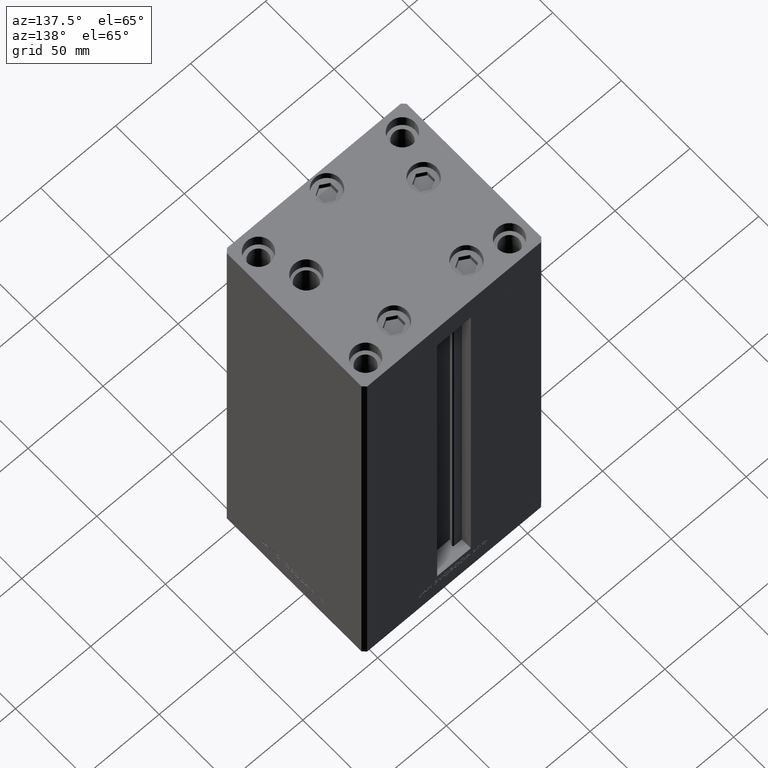
[diagram: clean part render]
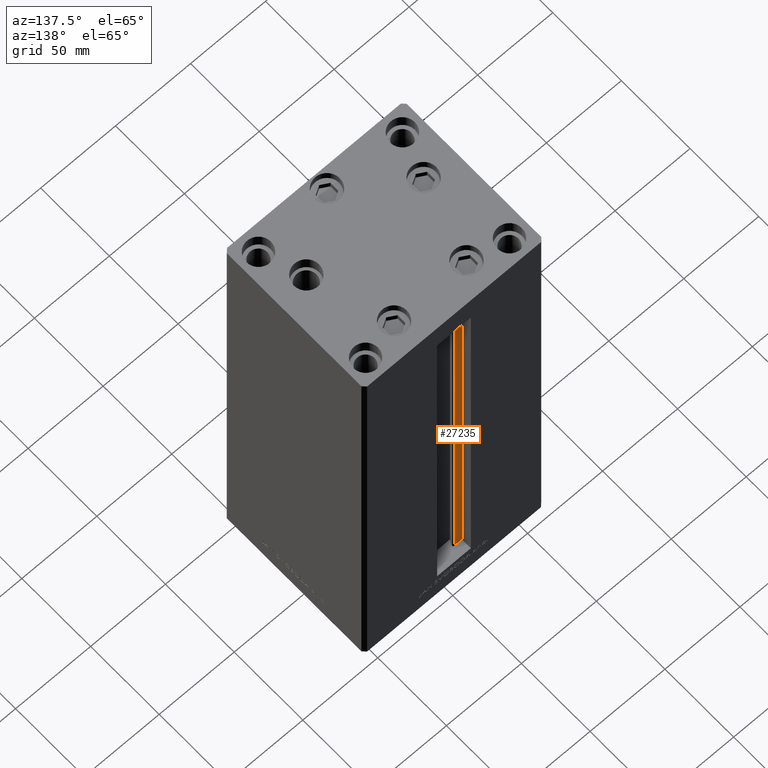
[diagram: same view with one face highlighted and labeled with its STEP entity id]
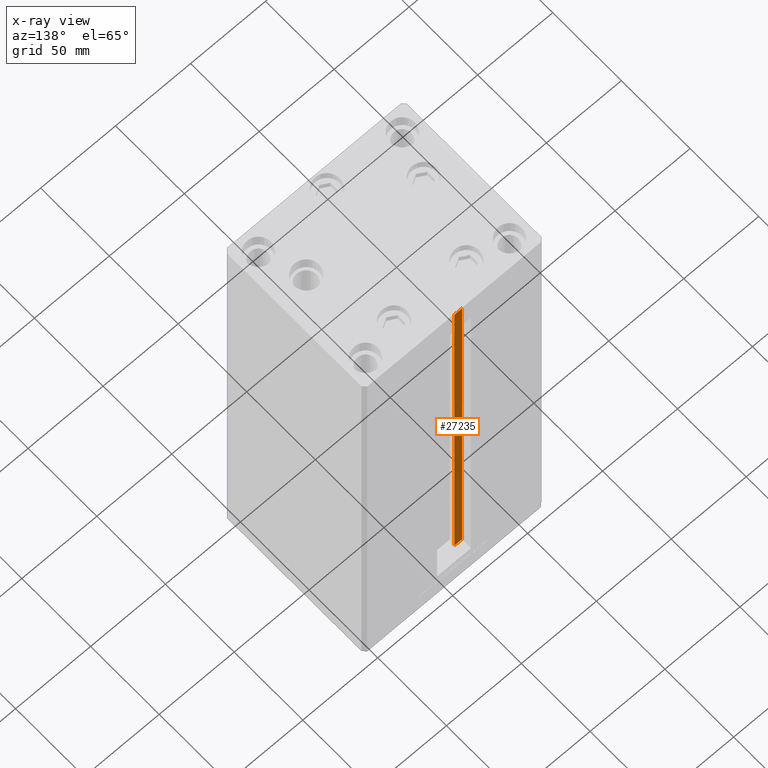
[diagram: x-ray of the same camera — body ghosted, the highlighted face saturated]
A machine part, auxiliary view. The second image highlights one B-rep face of the part: STEP entity #27235.
The next image is the same camera in x-ray: the body ghosted, the highlighted face saturated — about 0% of this face is hidden behind the body in this view.
In plain terms, the highlighted planar face has unit normal (0, -1, 0).
Its self-contained STEP definition (entity closure, byte-faithful):
#1570 = VECTOR ( 'NONE', #33285, 1000.000000000000000 ) ;
#3105 = DIRECTION ( 'NONE',  ( -0.000000000000000000, -0.000000000000000000, 1.000000000000000000 ) ) ;
#3622 = FACE_OUTER_BOUND ( 'NONE', #24486, .T. ) ;
#3951 = DIRECTION ( 'NONE',  ( 1.000000000000000000, -0.000000000000000000, -0.000000000000000000 ) ) ;
#3981 = CARTESIAN_POINT ( 'NONE',  ( -11.25000000000000178, 44.50000000000000000, 268.5000000000000000 ) ) ;
#4121 = DIRECTION ( 'NONE',  ( 0.000000000000000000, 0.000000000000000000, -1.000000000000000000 ) ) ;
#4360 = CARTESIAN_POINT ( 'NONE',  ( -11.25000000000000178, 44.50000000000000000, 0.000000000000000000 ) ) ;
#5116 = DIRECTION ( 'NONE',  ( -1.000000000000000000, 0.000000000000000000, 0.000000000000000000 ) ) ;
#6222 = VECTOR ( 'NONE', #3951, 1000.000000000000000 ) ;
#7101 = CARTESIAN_POINT ( 'NONE',  ( -6.183333333334001480, 44.50000000000000000, 0.000000000000000000 ) ) ;
#7653 = LINE ( 'NONE', #34011, #6222 ) ;
#7738 = VERTEX_POINT ( 'NONE', #30937 ) ;
#12028 = EDGE_CURVE ( 'NONE', #48400, #22541, #17536, .T. ) ;
#12193 = CARTESIAN_POINT ( 'NONE',  ( -6.183333333334001480, 44.50000000000000000, 0.000000000000000000 ) ) ;
#16213 = VECTOR ( 'NONE', #5116, 1000.000000000000000 ) ;
#17536 = LINE ( 'NONE', #37147, #44379 ) ;
#19012 = VERTEX_POINT ( 'NONE', #12193 ) ;
#19380 = EDGE_CURVE ( 'NONE', #7738, #22541, #24006, .T. ) ;
#20006 = ORIENTED_EDGE ( 'NONE', *, *, #30033, .F. ) ;
#22091 = CARTESIAN_POINT ( 'NONE',  ( -6.183333333334001480, 44.50000000000000000, 0.000000000000000000 ) ) ;
#22541 = VERTEX_POINT ( 'NONE', #3981 ) ;
#24006 = LINE ( 'NONE', #39159, #16213 ) ;
#24486 = EDGE_LOOP ( 'NONE', ( #25402, #20006, #24842, #40631 ) ) ;
#24842 = ORIENTED_EDGE ( 'NONE', *, *, #12028, .T. ) ;
#25402 = ORIENTED_EDGE ( 'NONE', *, *, #35648, .F. ) ;
#27235 = ADVANCED_FACE ( 'NONE', ( #3622 ), #33941, .F. ) ;
#30033 = EDGE_CURVE ( 'NONE', #48400, #19012, #7653, .T. ) ;
#30937 = CARTESIAN_POINT ( 'NONE',  ( -6.183333333334001480, 44.50000000000000000, 268.5000000000000000 ) ) ;
#33285 = DIRECTION ( 'NONE',  ( -0.000000000000000000, -0.000000000000000000, 1.000000000000000000 ) ) ;
#33941 = PLANE ( 'NONE',  #47412 ) ;
#34011 = CARTESIAN_POINT ( 'NONE',  ( -6.183333333334001480, 44.50000000000000000, 0.000000000000000000 ) ) ;
#35648 = EDGE_CURVE ( 'NONE', #19012, #7738, #48692, .T. ) ;
#37147 = CARTESIAN_POINT ( 'NONE',  ( -11.25000000000000178, 44.50000000000000000, 0.000000000000000000 ) ) ;
#39159 = CARTESIAN_POINT ( 'NONE',  ( 0.000000000000000000, 44.50000000000000000, 268.5000000000000000 ) ) ;
#40631 = ORIENTED_EDGE ( 'NONE', *, *, #19380, .F. ) ;
#44379 = VECTOR ( 'NONE', #3105, 1000.000000000000000 ) ;
#47412 = AXIS2_PLACEMENT_3D ( 'NONE', #7101, #49111, #4121 ) ;
#48400 = VERTEX_POINT ( 'NONE', #4360 ) ;
#48692 = LINE ( 'NONE', #22091, #1570 ) ;
#49111 = DIRECTION ( 'NONE',  ( 0.000000000000000000, -1.000000000000000000, -0.000000000000000000 ) ) ;